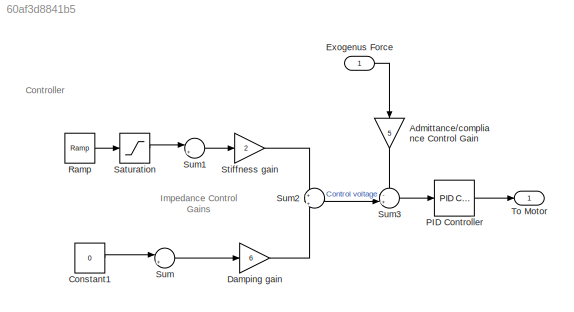
MODEL slx_60af3d8841b5
KIND model
CONFIG AbsTol = auto
CONFIG FixedStep = auto
CONFIG MaxStep = auto
CONFIG MinStep = auto
CONFIG RelTol = 1e-3
CONFIG SampleTimeConstraint = Unconstrained
CONFIG Solver = VariableStepAuto
CONFIG SolverMode = Auto
CONFIG SolverName = VariableStepAuto
CONFIG StartTime = 0.0
CONFIG StopTime = 20
WORKSPACE source: MATLAB code (in-file)
WORKSPACE J = 0.000027  (= 2.7e-05)
WORKSPACE R = 9.02
WORKSPACE b = 0.07
WORKSPACE Kt = 0.63
WORKSPACE Ke = 0.39
WORKSPACE L = 0.0187
WORKSPACE m = 0.1
WORKSPACE G1 = 0.1
WORKSPACE g = 9.81
WORKSPACE l = 0.15
BLOCK [Gain] Admittance//compliance Control Gain
  Gain = 5
  OutDataTypeStr = Inherit: Inherit via internal rule
  ParamDataTypeStr = Inherit: Inherit via internal rule
  SaturateOnIntegerOverflow = off
BLOCK [Constant] Constant1
  Value = 0
BLOCK [Gain] Damping gain
  Gain = 6
  OutDataTypeStr = Inherit: Inherit via internal rule
  ParamDataTypeStr = Inherit: Inherit via internal rule
  SaturateOnIntegerOverflow = off
BLOCK [Inport] Exogenus Force
  IconDisplay = Port number
BLOCK [Reference] PID Controller  REF=simulink/Continuous/PID Controller
  Ports = [1, 1]
  SourceBlock = simulink/Continuous/PID Controller
  SourceType = PID 1dof
BLOCK [Reference] Ramp  REF=simulink/Sources/Ramp
  Ports = [0, 1]
  SourceBlock = simulink/Sources/Ramp
  SourceType = Ramp
BLOCK [Saturate] Saturation
  InputPortMap = u0
  Ports = [1, 1]
  UpperLimit = 3.142
BLOCK [Gain] Stiffness gain
  Gain = 2
  OutDataTypeStr = Inherit: Inherit via internal rule
  ParamDataTypeStr = Inherit: Inherit via internal rule
  SaturateOnIntegerOverflow = off
BLOCK [Sum] Sum
  IconShape = round
  InputSameDT = off
  Inputs = |+-
  OutDataTypeStr = Inherit: Inherit via internal rule
  Ports = [2, 1]
  SaturateOnIntegerOverflow = off
BLOCK [Sum] Sum1
  IconShape = round
  InputSameDT = off
  Inputs = |+-
  OutDataTypeStr = Inherit: Inherit via internal rule
  Ports = [2, 1]
  SaturateOnIntegerOverflow = off
BLOCK [Sum] Sum2
  IconShape = round
  InputSameDT = off
  Inputs = +|+
  OutDataTypeStr = Inherit: Inherit via internal rule
  Ports = [2, 1]
  SaturateOnIntegerOverflow = off
BLOCK [Sum] Sum3
  IconShape = round
  InputSameDT = off
  Inputs = -+|
  OutDataTypeStr = Inherit: Inherit via internal rule
  Ports = [2, 1]
  SaturateOnIntegerOverflow = off
BLOCK [Outport] To Motor 
  IconDisplay = Port number
ANNOTATION (root): Controller
ANNOTATION (root): Impedance Control Gains
LINE Admittance//compliance Control Gain:1 -> Sum3:1
LINE Constant1:1 -> Sum:1
LINE Damping gain:1 -> Sum2:2
LINE Exogenus Force:1 -> Admittance//compliance Control Gain:1
LINE PID Controller:1 -> To Motor :1
LINE Ramp:1 -> Saturation:1
LINE Saturation:1 -> Sum1:1
LINE Stiffness gain:1 -> Sum2:1
LINE Sum1:1 -> Stiffness gain:1
LINE Sum2:1 -> Sum3:2
LINE Sum3:1 -> PID Controller:1
LINE Sum:1 -> Damping gain:1
